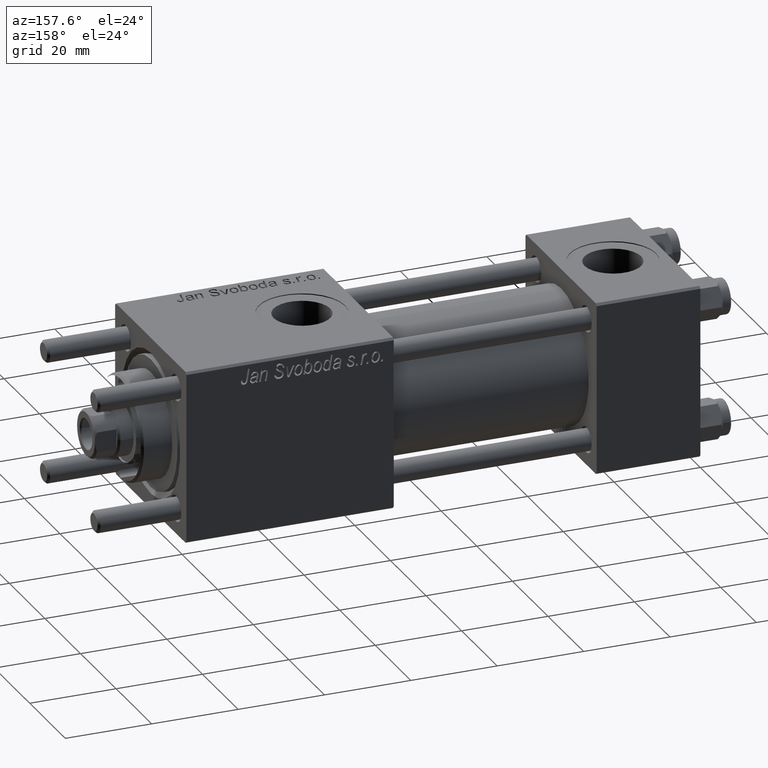
[diagram: clean part render]
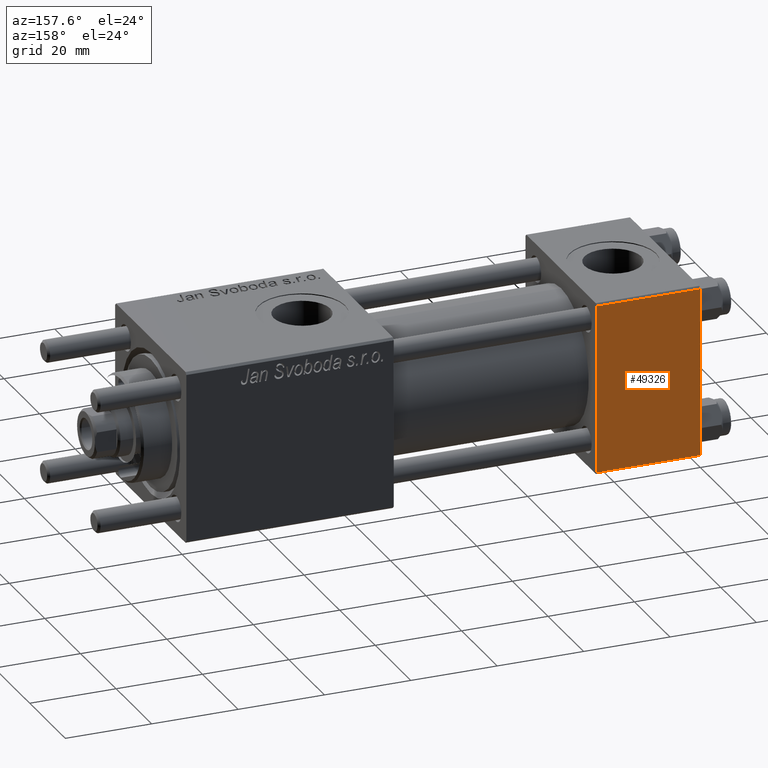
[diagram: same view with one face highlighted and labeled with its STEP entity id]
A machine part, auxiliary view. The second image highlights one B-rep face of the part: STEP entity #49326.
In plain terms, the highlighted planar face has unit normal (0, 1, 0).
Its self-contained STEP definition (entity closure, byte-faithful):
#2130 = DIRECTION ( 'NONE',  ( 1.000000000000000000, 0.000000000000000000, 0.000000000000000000 ) ) ;
#3169 = CARTESIAN_POINT ( 'NONE',  ( 24.00000000000000000, 20.00000000000000000, 19.49999999999999289 ) ) ;
#3855 = FACE_OUTER_BOUND ( 'NONE', #30277, .T. ) ;
#4369 = VECTOR ( 'NONE', #2130, 1000.000000000000000 ) ;
#4410 = ORIENTED_EDGE ( 'NONE', *, *, #16419, .T. ) ;
#7206 = LINE ( 'NONE', #20161, #21819 ) ;
#7489 = DIRECTION ( 'NONE',  ( 0.000000000000000000, 0.000000000000000000, -1.000000000000000000 ) ) ;
#8965 = VECTOR ( 'NONE', #10072, 1000.000000000000000 ) ;
#10072 = DIRECTION ( 'NONE',  ( -1.000000000000000000, 0.000000000000000000, 0.000000000000000000 ) ) ;
#10243 = VERTEX_POINT ( 'NONE', #35156 ) ;
#11592 = VERTEX_POINT ( 'NONE', #50469 ) ;
#12229 = EDGE_CURVE ( 'NONE', #17397, #11592, #19264, .T. ) ;
#15101 = ORIENTED_EDGE ( 'NONE', *, *, #16024, .T. ) ;
#16024 = EDGE_CURVE ( 'NONE', #10243, #28173, #54491, .T. ) ;
#16419 = EDGE_CURVE ( 'NONE', #28173, #17397, #7206, .T. ) ;
#17397 = VERTEX_POINT ( 'NONE', #43728 ) ;
#19264 = LINE ( 'NONE', #23576, #8965 ) ;
#19670 = CARTESIAN_POINT ( 'NONE',  ( 24.00000000000000000, 20.00000000000000000, 19.49999999999999289 ) ) ;
#20161 = CARTESIAN_POINT ( 'NONE',  ( 24.00000000000000000, 20.00000000000000000, 20.00000000000000000 ) ) ;
#21819 = VECTOR ( 'NONE', #7489, 1000.000000000000000 ) ;
#22232 = CARTESIAN_POINT ( 'NONE',  ( 24.00000000000000000, 20.00000000000000000, 20.00000000000000000 ) ) ;
#23576 = CARTESIAN_POINT ( 'NONE',  ( 24.00000000000000000, 20.00000000000000000, -19.50000000000002132 ) ) ;
#25621 = ORIENTED_EDGE ( 'NONE', *, *, #54941, .F. ) ;
#28173 = VERTEX_POINT ( 'NONE', #3169 ) ;
#28893 = CARTESIAN_POINT ( 'NONE',  ( 0.000000000000000000, 20.00000000000000000, 20.00000000000000000 ) ) ;
#29115 = ORIENTED_EDGE ( 'NONE', *, *, #12229, .T. ) ;
#30277 = EDGE_LOOP ( 'NONE', ( #4410, #29115, #25621, #15101 ) ) ;
#30304 = DIRECTION ( 'NONE',  ( -0.000000000000000000, 1.000000000000000000, 0.000000000000000000 ) ) ;
#35156 = CARTESIAN_POINT ( 'NONE',  ( 0.000000000000000000, 20.00000000000000000, 19.49999999999999289 ) ) ;
#35189 = PLANE ( 'NONE',  #49508 ) ;
#41854 = DIRECTION ( 'NONE',  ( 0.000000000000000000, 0.000000000000000000, -1.000000000000000000 ) ) ;
#43728 = CARTESIAN_POINT ( 'NONE',  ( 24.00000000000000000, 20.00000000000000000, -19.50000000000002132 ) ) ;
#45606 = LINE ( 'NONE', #28893, #55166 ) ;
#49326 = ADVANCED_FACE ( 'NONE', ( #3855 ), #35189, .T. ) ;
#49508 = AXIS2_PLACEMENT_3D ( 'NONE', #22232, #30304, #56773 ) ;
#50469 = CARTESIAN_POINT ( 'NONE',  ( 0.000000000000000000, 20.00000000000000000, -19.50000000000002132 ) ) ;
#54491 = LINE ( 'NONE', #19670, #4369 ) ;
#54941 = EDGE_CURVE ( 'NONE', #10243, #11592, #45606, .T. ) ;
#55166 = VECTOR ( 'NONE', #41854, 1000.000000000000000 ) ;
#56773 = DIRECTION ( 'NONE',  ( 0.000000000000000000, -0.000000000000000000, 1.000000000000000000 ) ) ;